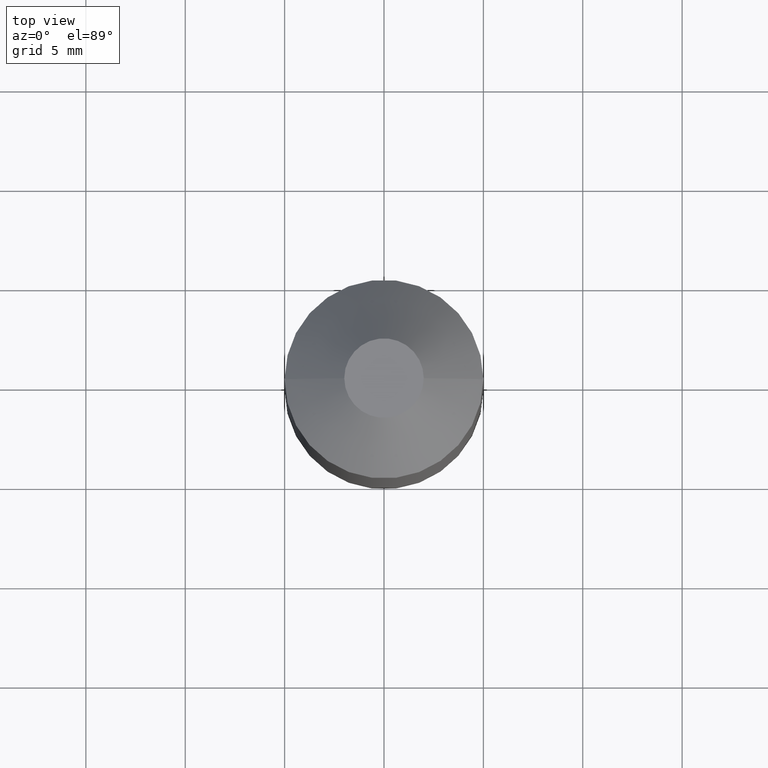
[diagram: clean part render]
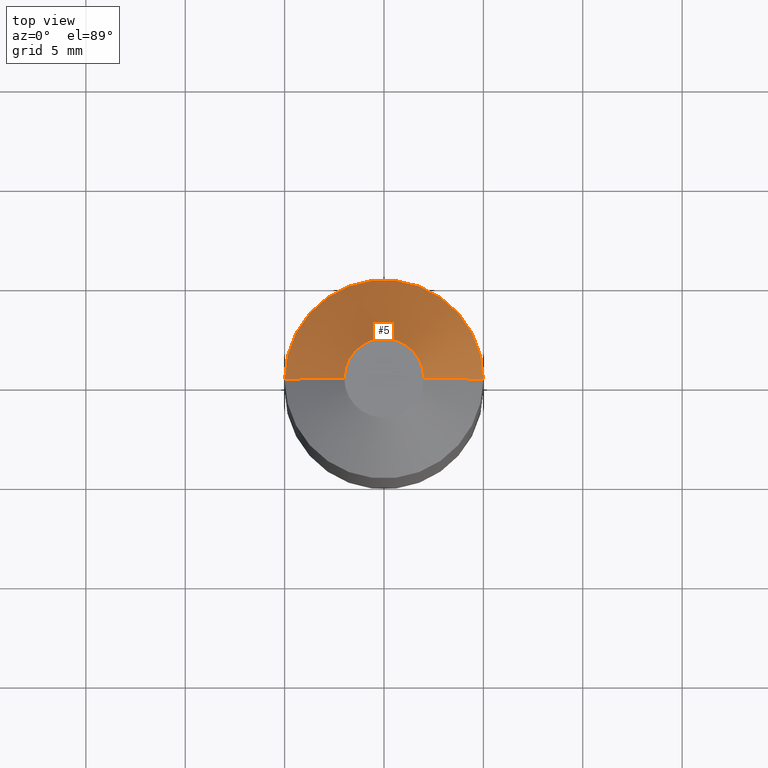
[diagram: same view with one face highlighted and labeled with its STEP entity id]
A machine part, top view. The second image highlights one B-rep face of the part: STEP entity #5.
In plain terms, the highlighted conical surface has half-angle 45 deg.
Its self-contained STEP definition (entity closure, byte-faithful):
#5 = ADVANCED_FACE ( 'NONE', ( #286 ), #285, .T. ) ;
#7 = ORIENTED_EDGE ( 'NONE', *, *, #61, .F. ) ;
#10 = CARTESIAN_POINT ( 'NONE',  ( 1.999999999999999100, 4.286263797015613800E-016, 4.000000000000287800 ) ) ;
#13 = CARTESIAN_POINT ( 'NONE',  ( 9.947598300641398800E-014, 0.0000000000000000000, 4.000000000000287800 ) ) ;
#32 = CARTESIAN_POINT ( 'NONE',  ( 1.999999999999999100, 2.449293598294584100E-016, 4.000000000000287800 ) ) ;
#57 = CARTESIAN_POINT ( 'NONE',  ( 9.947598300641398800E-014, 0.0000000000000000000, 4.000000000000287800 ) ) ;
#61 = EDGE_CURVE ( 'NONE', #257, #156, #200, .T. ) ;
#63 = DIRECTION ( 'NONE',  ( -0.7071067811865472400, 0.0000000000000000000, -0.7071067811865479100 ) ) ;
#64 = CARTESIAN_POINT ( 'NONE',  ( 5.000000000000000000, 0.0000000000000000000, 1.000000000000285300 ) ) ;
#68 = VERTEX_POINT ( 'NONE', #118 ) ;
#79 = DIRECTION ( 'NONE',  ( 0.0000000000000000000, 0.0000000000000000000, 1.000000000000000000 ) ) ;
#104 = EDGE_CURVE ( 'NONE', #160, #68, #230, .T. ) ;
#106 = DIRECTION ( 'NONE',  ( 1.000000000000000000, 0.0000000000000000000, 0.0000000000000000000 ) ) ;
#113 = DIRECTION ( 'NONE',  ( 0.0000000000000000000, 0.0000000000000000000, 1.000000000000000000 ) ) ;
#118 = CARTESIAN_POINT ( 'NONE',  ( -4.999999999999801000, 6.123233995736644000E-016, 1.000000000000285300 ) ) ;
#120 = LINE ( 'NONE', #32, #264 ) ;
#125 = ORIENTED_EDGE ( 'NONE', *, *, #104, .T. ) ;
#126 = EDGE_LOOP ( 'NONE', ( #7, #229, #125, #284 ) ) ;
#128 = CARTESIAN_POINT ( 'NONE',  ( -1.999999999999800600, 0.0000000000000000000, 4.000000000000287800 ) ) ;
#130 = AXIS2_PLACEMENT_3D ( 'NONE', #13, #166, #191 ) ;
#138 = DIRECTION ( 'NONE',  ( 1.000000000000000000, 0.0000000000000000000, 0.0000000000000000000 ) ) ;
#147 = AXIS2_PLACEMENT_3D ( 'NONE', #57, #113, #138 ) ;
#156 = VERTEX_POINT ( 'NONE', #233 ) ;
#160 = VERTEX_POINT ( 'NONE', #64 ) ;
#166 = DIRECTION ( 'NONE',  ( -0.0000000000000000000, -0.0000000000000000000, -1.000000000000000000 ) ) ;
#191 = DIRECTION ( 'NONE',  ( -1.000000000000000000, 0.0000000000000000000, 0.0000000000000000000 ) ) ;
#200 = CIRCLE ( 'NONE', #147, 1.999999999999899900 ) ;
#211 = CARTESIAN_POINT ( 'NONE',  ( 9.947598300641398800E-014, 0.0000000000000000000, 1.000000000000285300 ) ) ;
#229 = ORIENTED_EDGE ( 'NONE', *, *, #267, .T. ) ;
#230 = CIRCLE ( 'NONE', #231, 4.999999999999900500 ) ;
#231 = AXIS2_PLACEMENT_3D ( 'NONE', #211, #79, #106 ) ;
#233 = CARTESIAN_POINT ( 'NONE',  ( -1.999999999999800600, 0.0000000000000000000, 4.000000000000287800 ) ) ;
#241 = EDGE_CURVE ( 'NONE', #156, #68, #244, .T. ) ;
#244 = LINE ( 'NONE', #128, #252 ) ;
#252 = VECTOR ( 'NONE', #63, 999.9999999999998900 ) ;
#257 = VERTEX_POINT ( 'NONE', #10 ) ;
#264 = VECTOR ( 'NONE', #295, 999.9999999999998900 ) ;
#267 = EDGE_CURVE ( 'NONE', #257, #160, #120, .T. ) ;
#284 = ORIENTED_EDGE ( 'NONE', *, *, #241, .F. ) ;
#285 = CONICAL_SURFACE ( 'NONE', #130, 1.999999999999899900, 0.7853981633974479500 ) ;
#286 = FACE_OUTER_BOUND ( 'NONE', #126, .T. ) ;
#295 = DIRECTION ( 'NONE',  ( 0.7071067811865472400, 8.659560562354930400E-017, -0.7071067811865479100 ) ) ;